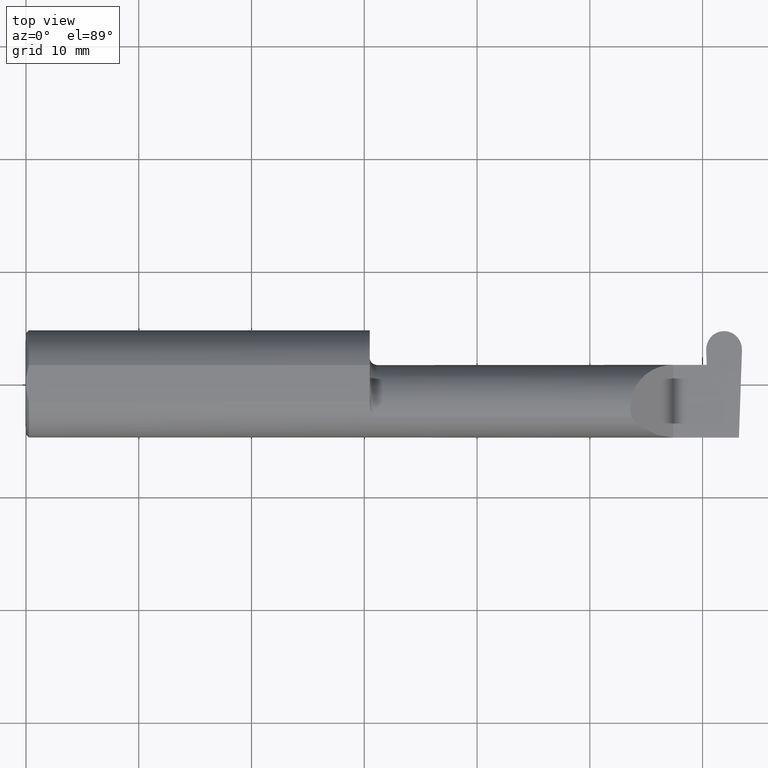
[diagram: clean part render]
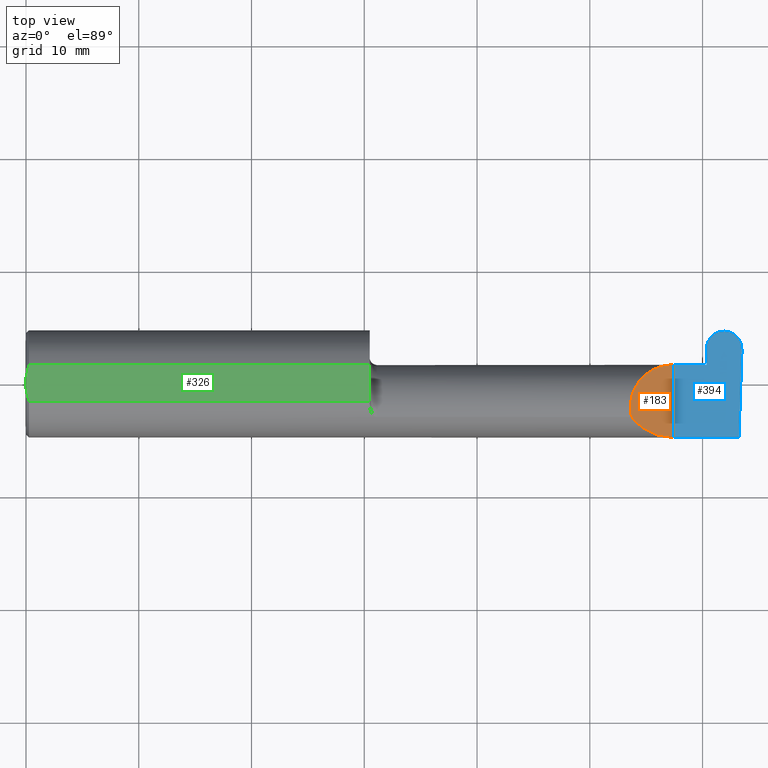
[diagram: same view with three faces highlighted in distinct colors, each labeled with its STEP entity id]
A machine part, top view with three faces highlighted in distinct colors.
Their STEP definitions:

[orange] entity #183 — the highlighted planar face has unit normal (-0.7071, 0, -0.7071).
#19 = CARTESIAN_POINT ( 'NONE',  ( 2.260000000000000231, 0.06664999999999994540, 1.592040838891559588E-16 ) ) ;
#39 =( BOUNDED_CURVE ( )  B_SPLINE_CURVE ( 3, ( #683, #462, #347, #616 ),
 .UNSPECIFIED., .F., .F. ) 
 B_SPLINE_CURVE_WITH_KNOTS ( ( 4, 4 ),
 ( 4.712388980384688786, 5.606916381293134855 ),
 .UNSPECIFIED. ) 
 CURVE ( )  GEOMETRIC_REPRESENTATION_ITEM ( )  RATIONAL_B_SPLINE_CURVE ( ( 1.000000000000000000, 0.9344226172588805390, 0.9344226172588805390, 1.000000000000000000 ) ) 
 REPRESENTATION_ITEM ( '' )  );
#59 = VERTEX_POINT ( 'NONE', #76 ) ;
#74 = EDGE_CURVE ( 'NONE', #421, #59, #39, .T. ) ;
#76 = CARTESIAN_POINT ( 'NONE',  ( 2.113883229301068312, -0.1172600179964009698, 0.1461167706989301152 ) ) ;
#78 = CARTESIAN_POINT ( 'NONE',  ( 2.090221225029925911, -0.01530148607434185341, 0.1697787749700727655 ) ) ;
#92 = DIRECTION ( 'NONE',  ( -0.000000000000000000, 1.000000000000000000, -0.000000000000000000 ) ) ;
#173 = VERTEX_POINT ( 'NONE', #19 ) ;
#183 = ADVANCED_FACE ( 'NONE', ( #450 ), #669, .F. ) ;
#221 = CARTESIAN_POINT ( 'NONE',  ( 2.260000000000000231, -0.2500000000000000555, 2.939152317953647352E-17 ) ) ;
#224 = DIRECTION ( 'NONE',  ( -0.7071067811865441310, 0.000000000000000000, -0.7071067811865510144 ) ) ;
#297 = EDGE_LOOP ( 'NONE', ( #570, #337, #518 ) ) ;
#337 = ORIENTED_EDGE ( 'NONE', *, *, #74, .F. ) ;
#347 = CARTESIAN_POINT ( 'NONE',  ( 2.150065971957465294, -0.1623470442677543146, 0.1099340280425335076 ) ) ;
#348 = CARTESIAN_POINT ( 'NONE',  ( 2.113883229301068312, -0.1172600179964009698, 0.1461167706989301152 ) ) ;
#393 = DIRECTION ( 'NONE',  ( -0.7071067811865509034, 0.000000000000000000, 0.7071067811865440200 ) ) ;
#396 = VECTOR ( 'NONE', #92, 39.37007874015748143 ) ;
#415 = CARTESIAN_POINT ( 'NONE',  ( 2.260000000000000231, -0.1873499999999999888, 2.939152317953647352E-17 ) ) ;
#421 = VERTEX_POINT ( 'NONE', #415 ) ;
#435 = EDGE_CURVE ( 'NONE', #421, #173, #520, .T. ) ;
#449 = EDGE_CURVE ( 'NONE', #59, #173, #541, .T. ) ;
#450 = FACE_OUTER_BOUND ( 'NONE', #297, .T. ) ;
#457 = CARTESIAN_POINT ( 'NONE',  ( 2.155331797197863608, 0.06664999999999994540, 0.1046682028021362204 ) ) ;
#462 = CARTESIAN_POINT ( 'NONE',  ( 2.202189699843948745, -0.1873500000000000165, 0.05781030015605089639 ) ) ;
#468 = CARTESIAN_POINT ( 'NONE',  ( 2.260000000000000231, -0.2500000000000000555, 2.939152317953647352E-17 ) ) ;
#518 = ORIENTED_EDGE ( 'NONE', *, *, #435, .T. ) ;
#520 = LINE ( 'NONE', #468, #396 ) ;
#541 =( BOUNDED_CURVE ( )  B_SPLINE_CURVE ( 3, ( #348, #78, #457, #676 ),
 .UNSPECIFIED., .F., .T. ) 
 B_SPLINE_CURVE_WITH_KNOTS ( ( 4, 4 ),
 ( 6.055147272130140479, 7.853981633974482790 ),
 .UNSPECIFIED. ) 
 CURVE ( )  GEOMETRIC_REPRESENTATION_ITEM ( )  RATIONAL_B_SPLINE_CURVE ( ( 1.000000000000000000, 0.7480442670255262883, 0.7480442670255262883, 1.000000000000000000 ) ) 
 REPRESENTATION_ITEM ( '' )  );
#570 = ORIENTED_EDGE ( 'NONE', *, *, #449, .F. ) ;
#616 = CARTESIAN_POINT ( 'NONE',  ( 2.113883229301068312, -0.1172600179964009698, 0.1461167706989301152 ) ) ;
#652 = AXIS2_PLACEMENT_3D ( 'NONE', #221, #224, #393 ) ;
#669 = PLANE ( 'NONE',  #652 ) ;
#676 = CARTESIAN_POINT ( 'NONE',  ( 2.260000000000000231, 0.06664999999999994540, 1.592040838891559588E-16 ) ) ;
#683 = CARTESIAN_POINT ( 'NONE',  ( 2.260000000000000231, -0.1873499999999999888, 2.939152317953647352E-17 ) ) ;

[blue] entity #394 — the highlighted planar face has unit normal (-0, 0, -1).
#7 = EDGE_CURVE ( 'NONE', #603, #339, #379, .T. ) ;
#16 = CARTESIAN_POINT ( 'NONE',  ( 2.475377307836966079, 0.1846499999999998975, -4.652953611126238856E-18 ) ) ;
#19 = CARTESIAN_POINT ( 'NONE',  ( 2.260000000000000231, 0.06664999999999994540, 1.592040838891559588E-16 ) ) ;
#28 = DIRECTION ( 'NONE',  ( -0.03489949670249634789, 0.9993908270190959842, -0.000000000000000000 ) ) ;
#29 = VERTEX_POINT ( 'NONE', #499 ) ;
#46 = ORIENTED_EDGE ( 'NONE', *, *, #136, .F. ) ;
#48 = VERTEX_POINT ( 'NONE', #651 ) ;
#49 = DIRECTION ( 'NONE',  ( -0.03489949670249442581, -0.9993908270190959842, 0.000000000000000000 ) ) ;
#55 = DIRECTION ( 'NONE',  ( 1.000000000000000000, -0.000000000000000000, -0.000000000000000000 ) ) ;
#63 = CARTESIAN_POINT ( 'NONE',  ( 2.489235021721937002, -0.1873499999999999888, 0.000000000000000000 ) ) ;
#68 = CARTESIAN_POINT ( 'NONE',  ( 2.437939523532632435, 0.1846500000000000363, 0.000000000000000000 ) ) ;
#70 = EDGE_CURVE ( 'NONE', #173, #124, #673, .T. ) ;
#75 = PLANE ( 'NONE',  #428 ) ;
#82 = ORIENTED_EDGE ( 'NONE', *, *, #599, .T. ) ;
#89 = FACE_OUTER_BOUND ( 'NONE', #540, .T. ) ;
#92 = DIRECTION ( 'NONE',  ( -0.000000000000000000, 1.000000000000000000, -0.000000000000000000 ) ) ;
#94 = EDGE_CURVE ( 'NONE', #124, #139, #613, .T. ) ;
#113 = CARTESIAN_POINT ( 'NONE',  ( 2.437939523532632435, 0.1846500000000000363, 0.000000000000000000 ) ) ;
#124 = VERTEX_POINT ( 'NONE', #455 ) ;
#130 = DIRECTION ( 'NONE',  ( 1.000000000000000000, 7.267260269538567824E-17, 0.000000000000000000 ) ) ;
#136 = EDGE_CURVE ( 'NONE', #139, #48, #349, .T. ) ;
#139 = VERTEX_POINT ( 'NONE', #356 ) ;
#143 = ORIENTED_EDGE ( 'NONE', *, *, #410, .F. ) ;
#147 = DIRECTION ( 'NONE',  ( -1.000000000000000000, 0.000000000000000000, 1.224646799147353947E-16 ) ) ;
#173 = VERTEX_POINT ( 'NONE', #19 ) ;
#182 = CARTESIAN_POINT ( 'NONE',  ( 2.399346682163034039, 0.1846500000000001473, 1.238963249943322756E-17 ) ) ;
#232 = CARTESIAN_POINT ( 'NONE',  ( 2.374762147380223620, 0.1198259601510516803, 0.000000000000000000 ) ) ;
#234 = VECTOR ( 'NONE', #130, 39.37007874015748143 ) ;
#249 = DIRECTION ( 'NONE',  ( -1.224646799147353947E-16, 0.000000000000000000, -1.000000000000000000 ) ) ;
#250 = ORIENTED_EDGE ( 'NONE', *, *, #94, .F. ) ;
#268 = VECTOR ( 'NONE', #291, 39.37007874015748143 ) ;
#271 = CARTESIAN_POINT ( 'NONE',  ( 2.501240488363984493, 0.1564415835413277001, -7.820279735944560344E-18 ) ) ;
#278 = CARTESIAN_POINT ( 'NONE',  ( -0.001039370078739994957, 0.1846500000000000363, 0.000000000000000000 ) ) ;
#283 = VECTOR ( 'NONE', #49, 39.37007874015748854 ) ;
#291 = DIRECTION ( 'NONE',  ( 1.000000000000000000, -8.424094563689993078E-15, -0.000000000000000000 ) ) ;
#304 = LINE ( 'NONE', #411, #621 ) ;
#308 = CARTESIAN_POINT ( 'NONE',  ( 2.373483501636015180, 0.1564415835413277278, 1.555695862425156831E-17 ) ) ;
#334 = CARTESIAN_POINT ( 'NONE',  ( 2.499866899295296374, 0.1171071390637351134, 0.000000000000000000 ) ) ;
#336 = EDGE_CURVE ( 'NONE', #603, #48, #690, .T. ) ;
#339 = VERTEX_POINT ( 'NONE', #68 ) ;
#349 = LINE ( 'NONE', #232, #463 ) ;
#356 = CARTESIAN_POINT ( 'NONE',  ( 2.376619092827160884, 0.06664999999999994540, 0.000000000000000000 ) ) ;
#379 = LINE ( 'NONE', #278, #666 ) ;
#386 =( BOUNDED_CURVE ( )  B_SPLINE_CURVE ( 3, ( #334, #271, #16, #113 ),
 .UNSPECIFIED., .F., .F. ) 
 B_SPLINE_CURVE_WITH_KNOTS ( ( 4, 4 ),
 ( 1.627103621474502493, 3.225696776093221807 ),
 .UNSPECIFIED. ) 
 CURVE ( )  GEOMETRIC_REPRESENTATION_ITEM ( )  RATIONAL_B_SPLINE_CURVE ( ( 1.000000000000000000, 0.7981407609938093728, 0.7981407609938093728, 1.000000000000000000 ) ) 
 REPRESENTATION_ITEM ( '' )  );
#394 = ADVANCED_FACE ( 'NONE', ( #89 ), #75, .F. ) ;
#396 = VECTOR ( 'NONE', #92, 39.37007874015748143 ) ;
#410 = EDGE_CURVE ( 'NONE', #633, #421, #304, .T. ) ;
#411 = CARTESIAN_POINT ( 'NONE',  ( 3.749399456654646757E-32, -0.1873499999999999610, 3.061616997868383634E-16 ) ) ;
#415 = CARTESIAN_POINT ( 'NONE',  ( 2.260000000000000231, -0.1873499999999999888, 2.939152317953647352E-17 ) ) ;
#421 = VERTEX_POINT ( 'NONE', #415 ) ;
#424 = ORIENTED_EDGE ( 'NONE', *, *, #336, .T. ) ;
#428 = AXIS2_PLACEMENT_3D ( 'NONE', #630, #249, #147 ) ;
#435 = EDGE_CURVE ( 'NONE', #421, #173, #520, .T. ) ;
#446 = ORIENTED_EDGE ( 'NONE', *, *, #70, .F. ) ;
#455 = CARTESIAN_POINT ( 'NONE',  ( 2.367498442027135663, 0.06665000000000002867, 0.000000000000000000 ) ) ;
#461 = CARTESIAN_POINT ( 'NONE',  ( 2.374857090704703300, 0.1171071390637349746, 0.000000000000000000 ) ) ;
#463 = VECTOR ( 'NONE', #28, 39.37007874015748143 ) ;
#468 = CARTESIAN_POINT ( 'NONE',  ( 2.260000000000000231, -0.2500000000000000555, 2.939152317953647352E-17 ) ) ;
#478 = LINE ( 'NONE', #697, #283 ) ;
#492 = ORIENTED_EDGE ( 'NONE', *, *, #7, .F. ) ;
#499 = CARTESIAN_POINT ( 'NONE',  ( 2.499866899295296374, 0.1171071390637351134, 0.000000000000000000 ) ) ;
#501 = CARTESIAN_POINT ( 'NONE',  ( 2.436784466467367682, 0.1846500000000000363, 0.000000000000000000 ) ) ;
#520 = LINE ( 'NONE', #468, #396 ) ;
#526 = DIRECTION ( 'NONE',  ( -1.000000000000000000, -0.000000000000000000, -0.000000000000000000 ) ) ;
#540 = EDGE_LOOP ( 'NONE', ( #492, #424, #46, #250, #446, #640, #143, #628, #82 ) ) ;
#563 = CARTESIAN_POINT ( 'NONE',  ( 2.376619092827160884, 0.06664999999999994540, 0.000000000000000000 ) ) ;
#579 = EDGE_CURVE ( 'NONE', #29, #633, #478, .T. ) ;
#599 = EDGE_CURVE ( 'NONE', #29, #339, #386, .T. ) ;
#603 = VERTEX_POINT ( 'NONE', #501 ) ;
#613 = LINE ( 'NONE', #563, #268 ) ;
#621 = VECTOR ( 'NONE', #526, 39.37007874015748143 ) ;
#627 = CARTESIAN_POINT ( 'NONE',  ( 1.199999999999999956, 0.06664999999999987601, 1.592040838891559588E-16 ) ) ;
#628 = ORIENTED_EDGE ( 'NONE', *, *, #579, .F. ) ;
#630 = CARTESIAN_POINT ( 'NONE',  ( 2.500000000000000000, -0.2500000000000000555, 0.000000000000000000 ) ) ;
#633 = VERTEX_POINT ( 'NONE', #63 ) ;
#640 = ORIENTED_EDGE ( 'NONE', *, *, #435, .F. ) ;
#651 = CARTESIAN_POINT ( 'NONE',  ( 2.374857090704703300, 0.1171071390637349746, 0.000000000000000000 ) ) ;
#666 = VECTOR ( 'NONE', #55, 39.37007874015748143 ) ;
#672 = CARTESIAN_POINT ( 'NONE',  ( 2.436784466467367682, 0.1846500000000000363, 0.000000000000000000 ) ) ;
#673 = LINE ( 'NONE', #627, #234 ) ;
#690 =( BOUNDED_CURVE ( )  B_SPLINE_CURVE ( 3, ( #672, #182, #308, #461 ),
 .UNSPECIFIED., .F., .F. ) 
 B_SPLINE_CURVE_WITH_KNOTS ( ( 4, 4 ),
 ( 3.057488531086357320, 4.656081685705084183 ),
 .UNSPECIFIED. ) 
 CURVE ( )  GEOMETRIC_REPRESENTATION_ITEM ( )  RATIONAL_B_SPLINE_CURVE ( ( 1.000000000000000000, 0.7981407609938075964, 0.7981407609938075964, 1.000000000000000000 ) ) 
 REPRESENTATION_ITEM ( '' )  );
#697 = CARTESIAN_POINT ( 'NONE',  ( 2.499961842619776053, 0.1198259601510516942, 0.000000000000000000 ) ) ;

[green] entity #326 — the highlighted planar face has unit normal (0, 0, 1).
#1 = CARTESIAN_POINT ( 'NONE',  ( 0.000000000000000000, 0.1873499999999998500, 0.1763499999999999235 ) ) ;
#6 = CARTESIAN_POINT ( 'NONE',  ( 0.01000000000000013205, 0.06325108694718235836, 0.1763499999999999235 ) ) ;
#13 = LINE ( 'NONE', #230, #568 ) ;
#17 = EDGE_CURVE ( 'NONE', #704, #325, #497, .T. ) ;
#18 = CARTESIAN_POINT ( 'NONE',  ( 0.000000000000000000, -0.01880691362238934641, 0.1763499999999999235 ) ) ;
#30 = CARTESIAN_POINT ( 'NONE',  ( 0.01000000000000013205, -0.06325108694718235836, 0.1763499999999999235 ) ) ;
#57 = LINE ( 'NONE', #1, #110 ) ;
#66 = DIRECTION ( 'NONE',  ( -0.000000000000000000, 1.000000000000000000, -0.000000000000000000 ) ) ;
#79 = VECTOR ( 'NONE', #509, 39.37007874015748143 ) ;
#86 = DIRECTION ( 'NONE',  ( 1.000000000000000000, 0.000000000000000000, 0.000000000000000000 ) ) ;
#110 = VECTOR ( 'NONE', #66, 39.37007874015748143 ) ;
#114 = CARTESIAN_POINT ( 'NONE',  ( 0.01000000000000013205, 0.06325108694718235836, 0.1763499999999999235 ) ) ;
#118 = CARTESIAN_POINT ( 'NONE',  ( 0.001595548104417008695, -0.03385300050298640367, 0.1763499999999999235 ) ) ;
#121 = DIRECTION ( 'NONE',  ( -1.000000000000000000, -0.000000000000000000, -0.000000000000000000 ) ) ;
#138 = CARTESIAN_POINT ( 'NONE',  ( 1.199999999999999956, -0.06325108694718287183, 0.1763499999999999235 ) ) ;
#150 = EDGE_CURVE ( 'NONE', #416, #158, #677, .T. ) ;
#151 = VERTEX_POINT ( 'NONE', #622 ) ;
#158 = VERTEX_POINT ( 'NONE', #138 ) ;
#174 = B_SPLINE_CURVE_WITH_KNOTS ( 'NONE', 3,
 ( #176, #179, #118, #18 ),
 .UNSPECIFIED., .F., .F.,
 ( 4, 4 ),
 ( 0.009771445421851331775, 0.01092787937989104369 ),
 .UNSPECIFIED. ) ;
#176 = CARTESIAN_POINT ( 'NONE',  ( 0.01000000000000013205, -0.06325108694718235836, 0.1763499999999999235 ) ) ;
#177 = CARTESIAN_POINT ( 'NONE',  ( 0.005155213631852488369, 0.04890080824240059659, 0.1763499999999999235 ) ) ;
#179 = CARTESIAN_POINT ( 'NONE',  ( 0.005151108632379722968, -0.04888864921576022843, 0.1763499999999999235 ) ) ;
#187 = CARTESIAN_POINT ( 'NONE',  ( 0.000000000000000000, -0.06325108694718235836, 0.1763499999999999235 ) ) ;
#230 = CARTESIAN_POINT ( 'NONE',  ( 0.000000000000000000, 0.06325108694718235836, 0.1763499999999999235 ) ) ;
#245 = LINE ( 'NONE', #353, #79 ) ;
#255 = EDGE_LOOP ( 'NONE', ( #309, #481, #452, #311, #549, #663 ) ) ;
#274 = CARTESIAN_POINT ( 'NONE',  ( 0.001616639753276021213, 0.03405189565400638246, 0.1763499999999999235 ) ) ;
#280 = DIRECTION ( 'NONE',  ( 1.000000000000000000, 0.000000000000000000, -0.000000000000000000 ) ) ;
#309 = ORIENTED_EDGE ( 'NONE', *, *, #150, .T. ) ;
#311 = ORIENTED_EDGE ( 'NONE', *, *, #17, .F. ) ;
#313 = EDGE_CURVE ( 'NONE', #416, #151, #174, .T. ) ;
#325 = VERTEX_POINT ( 'NONE', #114 ) ;
#326 = ADVANCED_FACE ( 'NONE', ( #332 ), #551, .T. ) ;
#332 = FACE_OUTER_BOUND ( 'NONE', #255, .T. ) ;
#338 = CARTESIAN_POINT ( 'NONE',  ( 1.199999999999999956, 0.06325108694718235836, 0.1763499999999999235 ) ) ;
#353 = CARTESIAN_POINT ( 'NONE',  ( 1.199999999999999956, 0.1873499999999997112, 0.1763499999999999235 ) ) ;
#385 = EDGE_CURVE ( 'NONE', #158, #678, #245, .T. ) ;
#416 = VERTEX_POINT ( 'NONE', #30 ) ;
#452 = ORIENTED_EDGE ( 'NONE', *, *, #626, .T. ) ;
#481 = ORIENTED_EDGE ( 'NONE', *, *, #385, .T. ) ;
#488 = CARTESIAN_POINT ( 'NONE',  ( 0.000000000000000000, 0.01880691362238934988, 0.1763499999999999235 ) ) ;
#497 = B_SPLINE_CURVE_WITH_KNOTS ( 'NONE', 3,
 ( #488, #274, #177, #6 ),
 .UNSPECIFIED., .F., .F.,
 ( 4, 4 ),
 ( 0.01188664626022242071, 0.01304646959483746725 ),
 .UNSPECIFIED. ) ;
#504 = CARTESIAN_POINT ( 'NONE',  ( 0.000000000000000000, 0.01880691362238934988, 0.1763499999999999235 ) ) ;
#509 = DIRECTION ( 'NONE',  ( -7.267260269538567824E-17, 1.000000000000000000, 0.000000000000000000 ) ) ;
#549 = ORIENTED_EDGE ( 'NONE', *, *, #707, .F. ) ;
#551 = PLANE ( 'NONE',  #695 ) ;
#567 = VECTOR ( 'NONE', #86, 39.37007874015748143 ) ;
#568 = VECTOR ( 'NONE', #121, 39.37007874015748143 ) ;
#605 = DIRECTION ( 'NONE',  ( 0.000000000000000000, 0.000000000000000000, 1.000000000000000000 ) ) ;
#622 = CARTESIAN_POINT ( 'NONE',  ( 0.000000000000000000, -0.01880691362238934641, 0.1763499999999999235 ) ) ;
#626 = EDGE_CURVE ( 'NONE', #678, #325, #13, .T. ) ;
#662 = CARTESIAN_POINT ( 'NONE',  ( 2.876828993045917215, 0.1873499999999998500, 0.1763499999999999235 ) ) ;
#663 = ORIENTED_EDGE ( 'NONE', *, *, #313, .F. ) ;
#677 = LINE ( 'NONE', #187, #567 ) ;
#678 = VERTEX_POINT ( 'NONE', #338 ) ;
#695 = AXIS2_PLACEMENT_3D ( 'NONE', #662, #605, #280 ) ;
#704 = VERTEX_POINT ( 'NONE', #504 ) ;
#707 = EDGE_CURVE ( 'NONE', #151, #704, #57, .T. ) ;